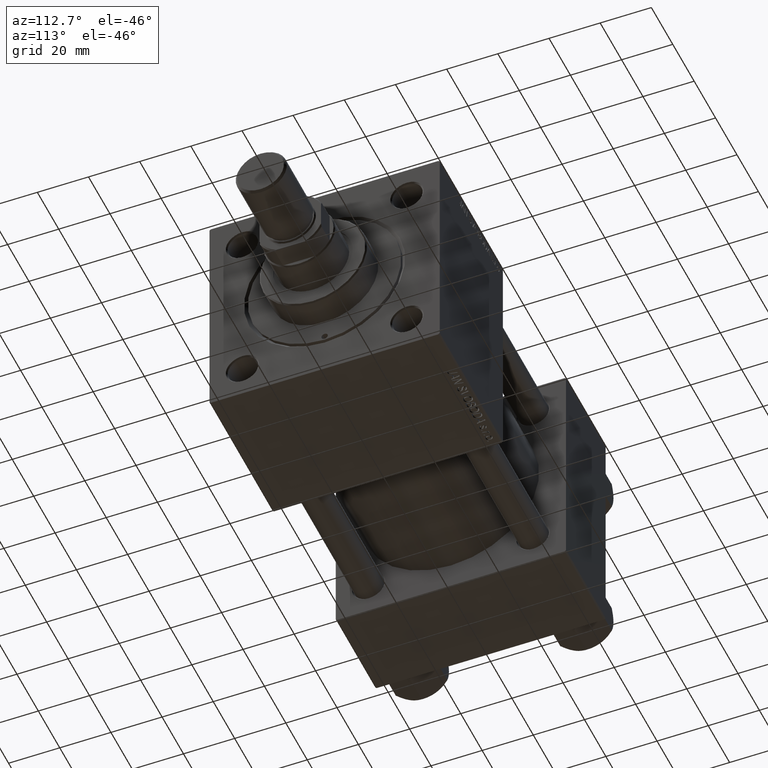
[diagram: clean part render]
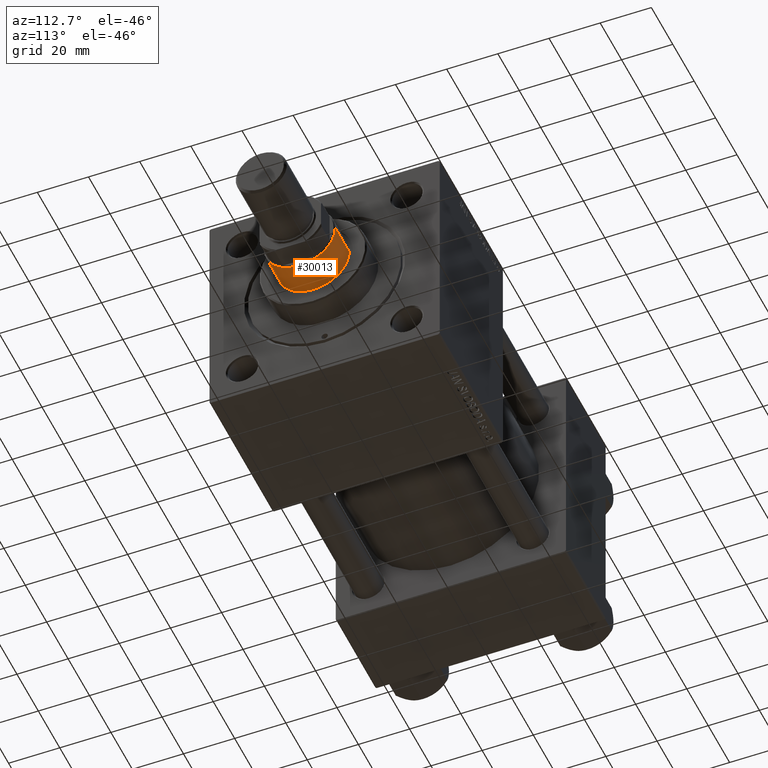
[diagram: same view with one face highlighted and labeled with its STEP entity id]
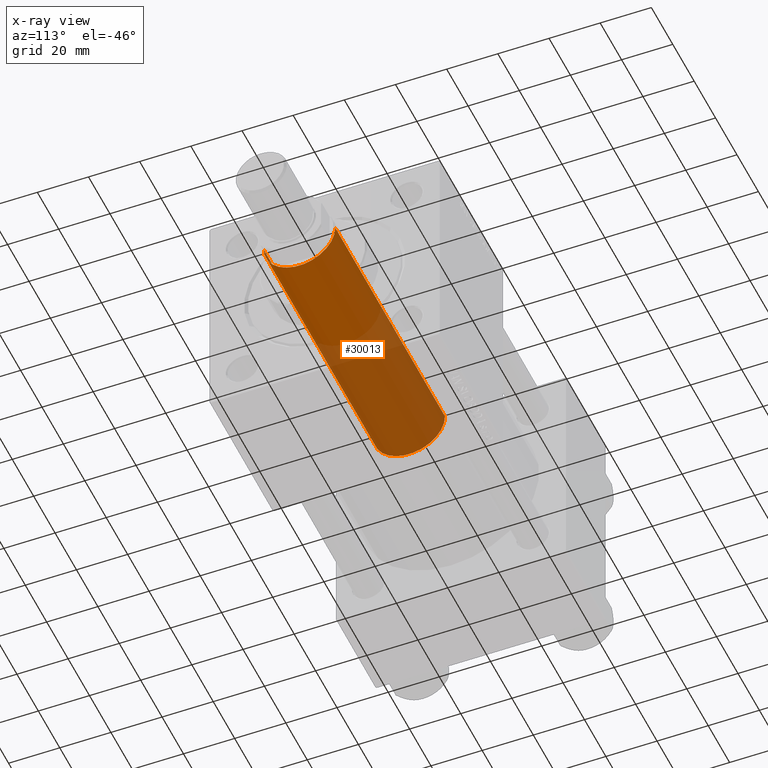
[diagram: x-ray of the same camera — body ghosted, the highlighted face saturated]
A machine part, auxiliary view. The second image highlights one B-rep face of the part: STEP entity #30013.
The next image is the same camera in x-ray: the body ghosted, the highlighted face saturated — about 58% of this face is hidden behind the body in this view.
In plain terms, the highlighted cylindrical surface (partial cylindrical patch) has radius 14 mm, axis along (-1, 0, 0).
Its self-contained STEP definition (entity closure, byte-faithful):
#132 = CARTESIAN_POINT ( 'NONE',  ( -14.00000000000000178, 0.000000000000000000, 142.0000000000000000 ) ) ;
#845 = CARTESIAN_POINT ( 'NONE',  ( 14.00000000000000178, 1.714505518806294835E-15, 39.00000000000000000 ) ) ;
#1150 = DIRECTION ( 'NONE',  ( -0.000000000000000000, -0.000000000000000000, -1.000000000000000000 ) ) ;
#1215 = CARTESIAN_POINT ( 'NONE',  ( -14.00000000000000178, 0.000000000000000000, 141.5000000000000000 ) ) ;
#1355 = CYLINDRICAL_SURFACE ( 'NONE', #9975, 14.00000000000000178 ) ;
#5079 = EDGE_CURVE ( 'NONE', #37176, #36667, #14237, .T. ) ;
#8512 = CARTESIAN_POINT ( 'NONE',  ( 14.00000000000000178, 1.714505518806294835E-15, 142.0000000000000000 ) ) ;
#8718 = DIRECTION ( 'NONE',  ( 1.000000000000000000, 0.000000000000000000, 0.000000000000000000 ) ) ;
#8919 = DIRECTION ( 'NONE',  ( 1.000000000000000000, 0.000000000000000000, 0.000000000000000000 ) ) ;
#9975 = AXIS2_PLACEMENT_3D ( 'NONE', #41873, #24753, #32713 ) ;
#14237 = CIRCLE ( 'NONE', #38037, 14.00000000000000178 ) ;
#18305 = AXIS2_PLACEMENT_3D ( 'NONE', #35930, #27986, #8718 ) ;
#19716 = ORIENTED_EDGE ( 'NONE', *, *, #42539, .T. ) ;
#24753 = DIRECTION ( 'NONE',  ( -0.000000000000000000, -0.000000000000000000, -1.000000000000000000 ) ) ;
#25092 = VECTOR ( 'NONE', #31377, 1000.000000000000000 ) ;
#27986 = DIRECTION ( 'NONE',  ( 0.000000000000000000, 0.000000000000000000, 1.000000000000000000 ) ) ;
#29134 = ORIENTED_EDGE ( 'NONE', *, *, #33297, .T. ) ;
#30013 = ADVANCED_FACE ( 'NONE', ( #36563 ), #1355, .T. ) ;
#31377 = DIRECTION ( 'NONE',  ( -0.000000000000000000, -0.000000000000000000, -1.000000000000000000 ) ) ;
#31496 = LINE ( 'NONE', #132, #37349 ) ;
#32713 = DIRECTION ( 'NONE',  ( -1.000000000000000000, 0.000000000000000000, 0.000000000000000000 ) ) ;
#33297 = EDGE_CURVE ( 'NONE', #50304, #49026, #45375, .T. ) ;
#35930 = CARTESIAN_POINT ( 'NONE',  ( 0.000000000000000000, 0.000000000000000000, 39.00000000000000000 ) ) ;
#36093 = CARTESIAN_POINT ( 'NONE',  ( 14.00000000000000178, 1.714505518806294835E-15, 141.5000000000000000 ) ) ;
#36563 = FACE_OUTER_BOUND ( 'NONE', #46571, .T. ) ;
#36667 = VERTEX_POINT ( 'NONE', #36093 ) ;
#37176 = VERTEX_POINT ( 'NONE', #1215 ) ;
#37349 = VECTOR ( 'NONE', #1150, 1000.000000000000000 ) ;
#38037 = AXIS2_PLACEMENT_3D ( 'NONE', #44117, #43359, #8919 ) ;
#41873 = CARTESIAN_POINT ( 'NONE',  ( 0.000000000000000000, 0.000000000000000000, 142.0000000000000000 ) ) ;
#41935 = EDGE_CURVE ( 'NONE', #37176, #49026, #31496, .T. ) ;
#42539 = EDGE_CURVE ( 'NONE', #36667, #50304, #43702, .T. ) ;
#43359 = DIRECTION ( 'NONE',  ( 0.000000000000000000, 0.000000000000000000, -1.000000000000000000 ) ) ;
#43702 = LINE ( 'NONE', #8512, #25092 ) ;
#44117 = CARTESIAN_POINT ( 'NONE',  ( 0.000000000000000000, 0.000000000000000000, 141.5000000000000000 ) ) ;
#44273 = ORIENTED_EDGE ( 'NONE', *, *, #41935, .F. ) ;
#44934 = ORIENTED_EDGE ( 'NONE', *, *, #5079, .T. ) ;
#45375 = CIRCLE ( 'NONE', #18305, 14.00000000000000178 ) ;
#46290 = CARTESIAN_POINT ( 'NONE',  ( -14.00000000000000178, 0.000000000000000000, 39.00000000000000000 ) ) ;
#46571 = EDGE_LOOP ( 'NONE', ( #44934, #19716, #29134, #44273 ) ) ;
#49026 = VERTEX_POINT ( 'NONE', #46290 ) ;
#50304 = VERTEX_POINT ( 'NONE', #845 ) ;